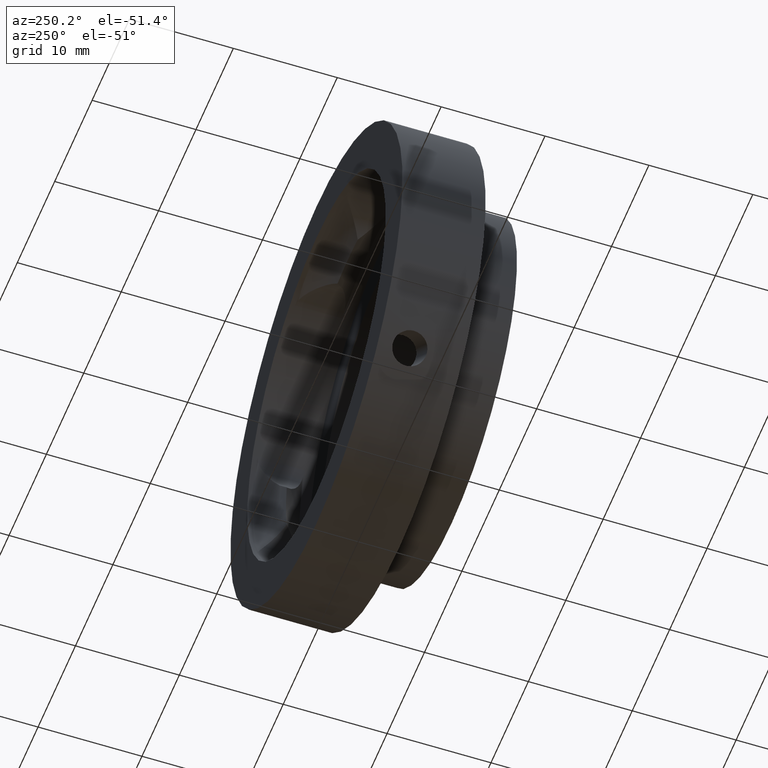
[diagram: clean part render]
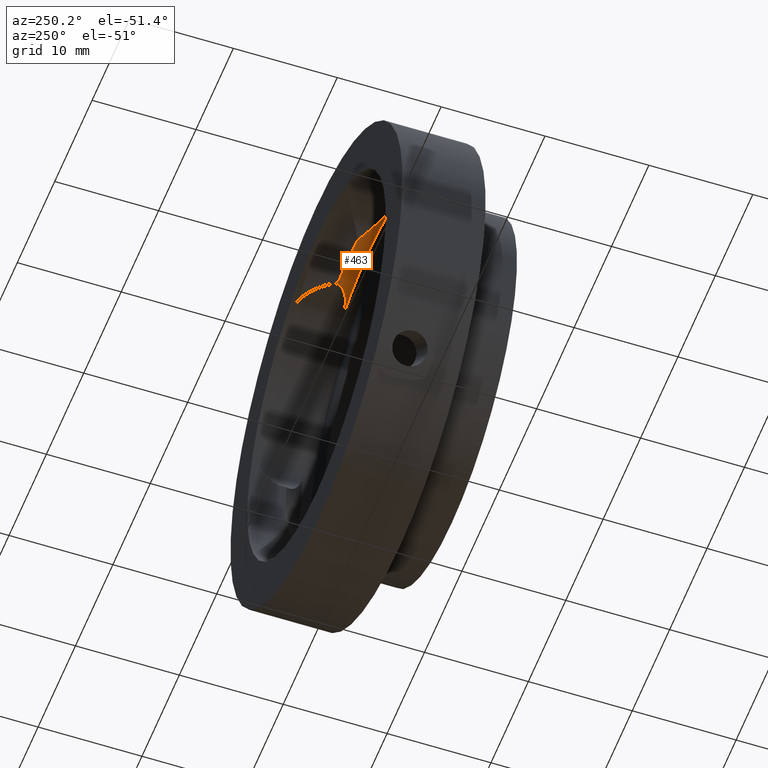
[diagram: same view with one face highlighted and labeled with its STEP entity id]
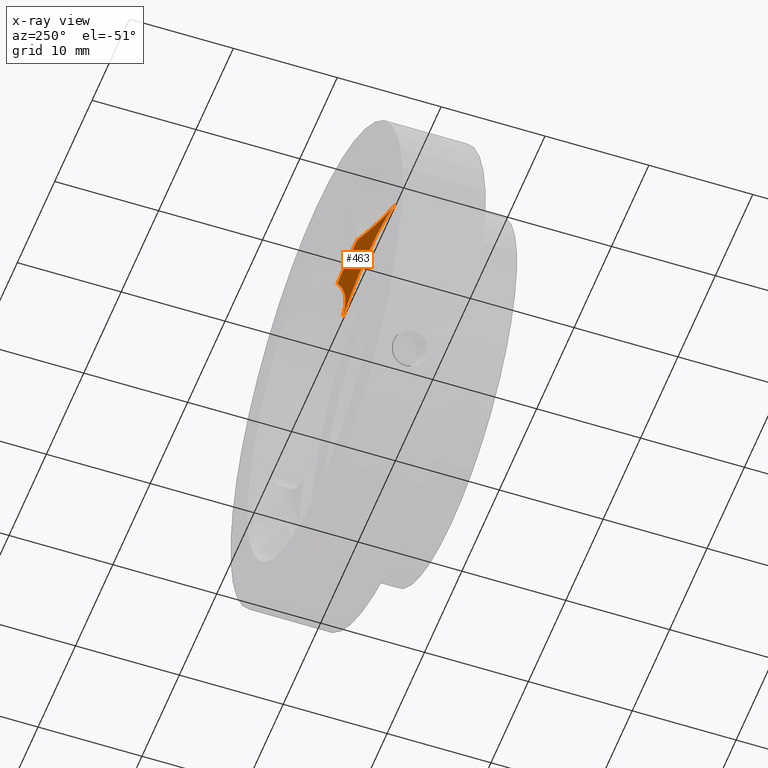
[diagram: x-ray of the same camera — body ghosted, the highlighted face saturated]
A machine part, auxiliary view. The second image highlights one B-rep face of the part: STEP entity #463.
The next image is the same camera in x-ray: the body ghosted, the highlighted face saturated — about 1% of this face is hidden behind the body in this view.
In plain terms, the highlighted conical surface has half-angle 45 deg.
Its self-contained STEP definition (entity closure, byte-faithful):
#21 = B_SPLINE_CURVE_WITH_KNOTS ( 'NONE', 3,
 ( #765, #1026, #585, #868, #955, #966, #687, #213, #405, #500, #124, #1059, #115, #1066, #595, #1165 ),
 .UNSPECIFIED., .F., .F.,
 ( 4, 2, 2, 2, 2, 2, 2, 4 ),
 ( 0.0000000000000000000, 0.001277547476136339100, 0.001916321214204510400, 0.002555094952272681700, 0.003193868690340852900, 0.003832642428409023800, 0.004471416166477195500, 0.005110189904545366800 ),
 .UNSPECIFIED. ) ;
#23 = DIRECTION ( 'NONE',  ( 1.000000000000000000, 0.0000000000000000000, 3.491481338843133700E-015 ) ) ;
#37 = AXIS2_PLACEMENT_3D ( 'NONE', #874, #1153, #23 ) ;
#41 = VERTEX_POINT ( 'NONE', #1036 ) ;
#47 = EDGE_CURVE ( 'NONE', #1007, #974, #82, .T. ) ;
#48 = DIRECTION ( 'NONE',  ( -1.000000000000000000, 0.0000000000000000000, -3.491481338843133700E-015 ) ) ;
#82 = CIRCLE ( 'NONE', #133, 16.50000000000000400 ) ;
#91 = CARTESIAN_POINT ( 'NONE',  ( -6.189483738287906400, -0.9360175860041525200, 17.36377203735857900 ) ) ;
#95 = CONICAL_SURFACE ( 'NONE', #37, 16.50000000000000400, 0.7853981633974479500 ) ;
#96 = CARTESIAN_POINT ( 'NONE',  ( -5.354362809911543200, -0.7282779534358672100, 17.42173332446860500 ) ) ;
#107 = AXIS2_PLACEMENT_3D ( 'NONE', #1177, #800, #973 ) ;
#109 = DIRECTION ( 'NONE',  ( -1.000000000000000000, 0.0000000000000000000, -3.491481338843133000E-015 ) ) ;
#115 = CARTESIAN_POINT ( 'NONE',  ( 6.179903961141143000, -0.9344659531724881500, 17.36556140427385500 ) ) ;
#124 = CARTESIAN_POINT ( 'NONE',  ( 5.557222146893151300, -0.7908663770417716500, 17.42393813335096600 ) ) ;
#133 = AXIS2_PLACEMENT_3D ( 'NONE', #210, #499, #48 ) ;
#155 = ORIENTED_EDGE ( 'NONE', *, *, #819, .F. ) ;
#200 = CARTESIAN_POINT ( 'NONE',  ( -4.951763082319218700, -0.5810033861874505100, 17.38733928880774500 ) ) ;
#210 = CARTESIAN_POINT ( 'NONE',  ( 0.0000000000000000000, 0.9967213114754017700, 0.0000000000000000000 ) ) ;
#213 = CARTESIAN_POINT ( 'NONE',  ( 4.748215048594064000, -0.4941257212724743400, 17.35379778037572200 ) ) ;
#226 = CARTESIAN_POINT ( 'NONE',  ( -2.696194980232713400, 0.9967213114754017700, 16.27822264955753800 ) ) ;
#248 = CIRCLE ( 'NONE', #107, 18.50000000000000400 ) ;
#302 = CARTESIAN_POINT ( 'NONE',  ( -4.374450562006333400, -0.3122837631558220700, 17.26424820430946700 ) ) ;
#330 = ORIENTED_EDGE ( 'NONE', *, *, #893, .T. ) ;
#342 = ORIENTED_EDGE ( 'NONE', *, *, #432, .T. ) ;
#403 = ORIENTED_EDGE ( 'NONE', *, *, #47, .T. ) ;
#405 = CARTESIAN_POINT ( 'NONE',  ( 4.943591860485513600, -0.5777427211710626200, 17.38628790845813300 ) ) ;
#432 = EDGE_CURVE ( 'NONE', #670, #1007, #1046, .T. ) ;
#446 = ORIENTED_EDGE ( 'NONE', *, *, #568, .F. ) ;
#463 = ADVANCED_FACE ( 'NONE', ( #594 ), #95, .F. ) ;
#468 = AXIS2_PLACEMENT_3D ( 'NONE', #1147, #573, #109 ) ;
#499 = DIRECTION ( 'NONE',  ( 0.0000000000000000000, 1.000000000000000000, 0.0000000000000000000 ) ) ;
#500 = CARTESIAN_POINT ( 'NONE',  ( 5.348970185286321800, -0.7265679070083205200, 17.42161432097635700 ) ) ;
#511 = EDGE_LOOP ( 'NONE', ( #155, #342, #403, #330, #446 ) ) ;
#568 = EDGE_CURVE ( 'NONE', #1223, #41, #248, .T. ) ;
#573 = DIRECTION ( 'NONE',  ( 0.0000000000000000000, 1.000000000000000000, 0.0000000000000000000 ) ) ;
#574 = CARTESIAN_POINT ( 'NONE',  ( -2.696194980232713400, 0.9967213114754017700, 16.27822264955753800 ) ) ;
#585 = CARTESIAN_POINT ( 'NONE',  ( 3.210219990467008800, 0.4709403505720252100, 16.72253079478980100 ) ) ;
#586 = CARTESIAN_POINT ( 'NONE',  ( -3.845112877072425700, 0.001249804549788457600, 17.06839893708486100 ) ) ;
#594 = FACE_OUTER_BOUND ( 'NONE', #511, .T. ) ;
#595 = CARTESIAN_POINT ( 'NONE',  ( 6.807030181175743900, -1.003278688524594100, 17.20354525679142600 ) ) ;
#660 = CARTESIAN_POINT ( 'NONE',  ( -6.603438613557512000, -0.9894836655709564600, 17.26785446949277200 ) ) ;
#663 = CIRCLE ( 'NONE', #468, 18.50000000000000400 ) ;
#670 = VERTEX_POINT ( 'NONE', #820 ) ;
#680 = CARTESIAN_POINT ( 'NONE',  ( 2.696194980232600600, 0.9967213114754017700, 16.27822264955755900 ) ) ;
#687 = CARTESIAN_POINT ( 'NONE',  ( 4.370495382168988900, -0.3101783494162302400, 17.26307366147863200 ) ) ;
#765 = CARTESIAN_POINT ( 'NONE',  ( 2.696194980232600600, 0.9967213114754017700, 16.27822264955755900 ) ) ;
#778 = CARTESIAN_POINT ( 'NONE',  ( -4.193140337874057300, -0.2125708105063334500, 17.20640036823041200 ) ) ;
#800 = DIRECTION ( 'NONE',  ( 0.0000000000000000000, 1.000000000000000000, 0.0000000000000000000 ) ) ;
#819 = EDGE_CURVE ( 'NONE', #670, #1223, #663, .T. ) ;
#820 = CARTESIAN_POINT ( 'NONE',  ( -7.009002072654646500, -1.003278688524598300, 17.12086125011013500 ) ) ;
#841 = CARTESIAN_POINT ( 'NONE',  ( -5.977662912055548000, -0.8957622099424957800, 17.39517815796419600 ) ) ;
#866 = CARTESIAN_POINT ( 'NONE',  ( -3.210569583372411700, 0.4703895165011933200, 16.72305895000282300 ) ) ;
#868 = CARTESIAN_POINT ( 'NONE',  ( 3.674277485651625200, 0.1185465515917979000, 16.98583161796313600 ) ) ;
#874 = CARTESIAN_POINT ( 'NONE',  ( 0.0000000000000000000, 0.9967213114754017700, 0.0000000000000000000 ) ) ;
#893 = EDGE_CURVE ( 'NONE', #974, #41, #21, .T. ) ;
#936 = CARTESIAN_POINT ( 'NONE',  ( -5.559413187524837600, -0.7915712444495640600, 17.42400059037319700 ) ) ;
#949 = CARTESIAN_POINT ( 'NONE',  ( -3.678299661001014400, 0.1156368215102769200, 16.98794662332046100 ) ) ;
#955 = CARTESIAN_POINT ( 'NONE',  ( 3.838128953070318900, 0.005843556950301884700, 17.06526524459217600 ) ) ;
#966 = CARTESIAN_POINT ( 'NONE',  ( 4.186960719202812900, -0.2090659476370442500, 17.20430090139504700 ) ) ;
#973 = DIRECTION ( 'NONE',  ( -1.000000000000000000, 0.0000000000000000000, -3.491481338843133000E-015 ) ) ;
#974 = VERTEX_POINT ( 'NONE', #680 ) ;
#1007 = VERTEX_POINT ( 'NONE', #226 ) ;
#1025 = CARTESIAN_POINT ( 'NONE',  ( -6.807688786752720500, -1.003278688524598600, 17.20327563438246100 ) ) ;
#1026 = CARTESIAN_POINT ( 'NONE',  ( 2.937169851206797000, 0.7247491321312102800, 16.51398706956324600 ) ) ;
#1036 = CARTESIAN_POINT ( 'NONE',  ( 7.009002072654526600, -1.003278688524598300, 17.12086125011018500 ) ) ;
#1046 = B_SPLINE_CURVE_WITH_KNOTS ( 'NONE', 3,
 ( #1123, #1025, #660, #91, #841, #936, #96, #200, #1150, #302, #778, #586, #949, #866, #1051, #574 ),
 .UNSPECIFIED., .F., .F.,
 ( 4, 2, 2, 2, 2, 2, 2, 4 ),
 ( 1.748223473168675600E-018, 0.0006422096218811571700, 0.001284419243762312600, 0.001926628865643468000, 0.002568838487524623500, 0.003211048109405778900, 0.003853257731286934300, 0.005137676975049249500 ),
 .UNSPECIFIED. ) ;
#1051 = CARTESIAN_POINT ( 'NONE',  ( -2.936943314697543000, 0.7250048086999093500, 16.51376543131303300 ) ) ;
#1059 = CARTESIAN_POINT ( 'NONE',  ( 5.971752037937928700, -0.8944457157212911700, 17.39579480274435100 ) ) ;
#1066 = CARTESIAN_POINT ( 'NONE',  ( 6.598051131039857100, -0.9890910841402675800, 17.26951803230468800 ) ) ;
#1101 = CARTESIAN_POINT ( 'NONE',  ( 2.265596578422603800E-015, -1.003278688524598300, 18.50000000000000400 ) ) ;
#1123 = CARTESIAN_POINT ( 'NONE',  ( -7.009002072654646500, -1.003278688524598300, 17.12086125011013500 ) ) ;
#1147 = CARTESIAN_POINT ( 'NONE',  ( -0.0000000000000000000, -1.003278688524598300, 0.0000000000000000000 ) ) ;
#1150 = CARTESIAN_POINT ( 'NONE',  ( -4.753089551175932600, -0.4963160831944126200, 17.35473873141533800 ) ) ;
#1153 = DIRECTION ( 'NONE',  ( -0.0000000000000000000, -1.000000000000000000, 0.0000000000000000000 ) ) ;
#1165 = CARTESIAN_POINT ( 'NONE',  ( 7.009002072654526600, -1.003278688524598300, 17.12086125011018500 ) ) ;
#1177 = CARTESIAN_POINT ( 'NONE',  ( -0.0000000000000000000, -1.003278688524598300, 0.0000000000000000000 ) ) ;
#1223 = VERTEX_POINT ( 'NONE', #1101 ) ;